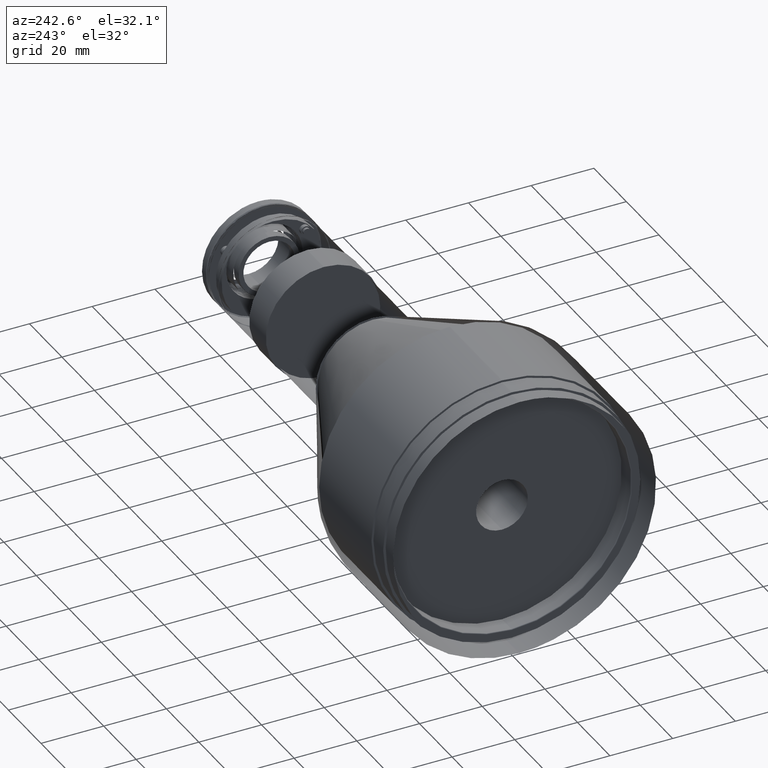
[diagram: clean part render]
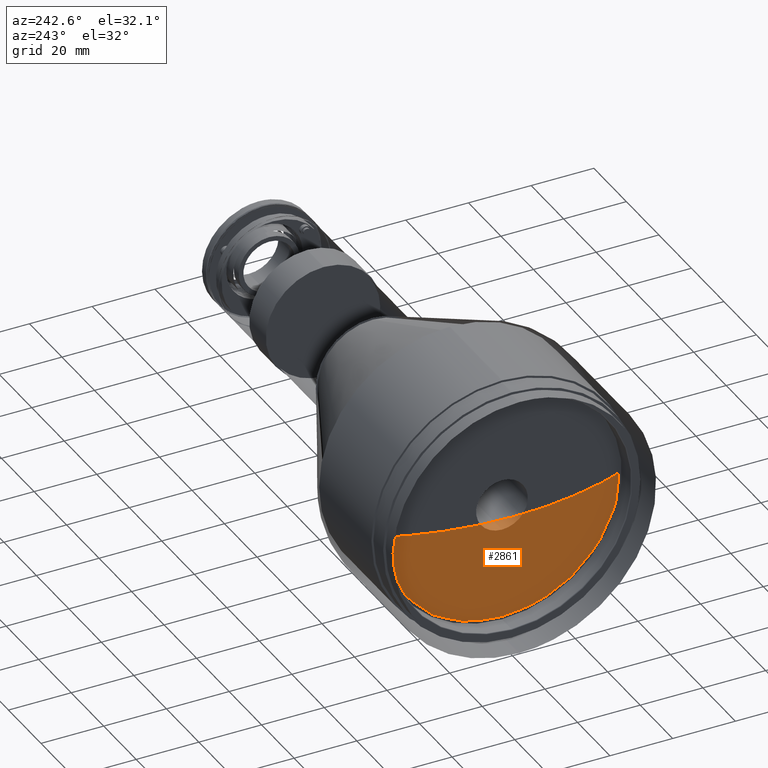
[diagram: same view with one face highlighted and labeled with its STEP entity id]
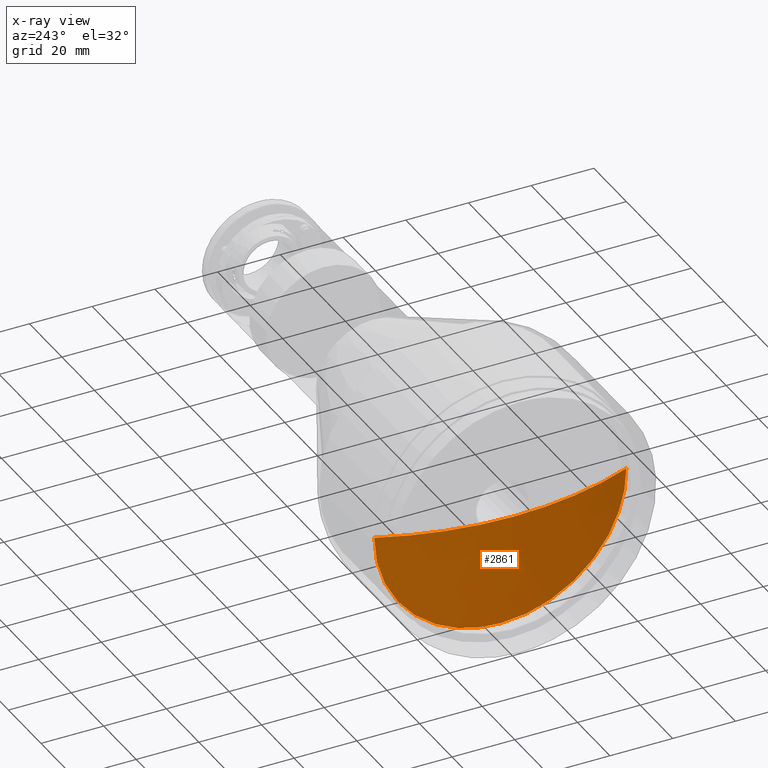
[diagram: x-ray of the same camera — body ghosted, the highlighted face saturated]
A machine part, auxiliary view. The second image highlights one B-rep face of the part: STEP entity #2861.
The next image is the same camera in x-ray: the body ghosted, the highlighted face saturated — about 0% of this face is hidden behind the body in this view.
In plain terms, the highlighted spherical surface has radius 103.562 mm.
Its self-contained STEP definition (entity closure, byte-faithful):
#212 = CARTESIAN_POINT ( 'NONE',  ( -12.48774575317731994, -26.56523537351348807, -194.3975650251960872 ) ) ;
#283 = EDGE_CURVE ( 'NONE', #1224, #2715, #9218, .T. ) ;
#321 = CARTESIAN_POINT ( 'NONE',  ( -12.48774575297434097, -5.262102636112507170, -204.0522824584492696 ) ) ;
#402 = DIRECTION ( 'NONE',  ( 2.054468784391190237E-12, 1.224646796003992963E-16, -1.000000000000000000 ) ) ;
#517 = CARTESIAN_POINT ( 'NONE',  ( -12.48774575284909893, -5.937449909053119909E-11, -204.3114151911725003 ) ) ;
#656 = CARTESIAN_POINT ( 'NONE',  ( -12.48774575282488719, 10.42315925403394594, -203.0256844683735267 ) ) ;
#708 = CARTESIAN_POINT ( 'NONE',  ( -12.48774575275445642, 17.81467849597928677, -200.2445002005909771 ) ) ;
#783 = SPHERICAL_SURFACE ( 'NONE', #9052, 103.5620100010689981 ) ;
#1027 = CARTESIAN_POINT ( 'NONE',  ( -12.48774575315784752, -24.52158963406693104, -196.0747417395316177 ) ) ;
#1224 = VERTEX_POINT ( 'NONE', #517 ) ;
#1418 = CARTESIAN_POINT ( 'NONE',  ( -12.48774575284909893, -5.937449909053119909E-11, -204.3114151911725003 ) ) ;
#1901 = CARTESIAN_POINT ( 'NONE',  ( -12.48774575330476466, -39.94086726742229843, -169.3735178270368920 ) ) ;
#2015 = CARTESIAN_POINT ( 'NONE',  ( -12.48774575302351586, -10.42315925417181965, -203.0256844683687518 ) ) ;
#2111 = CARTESIAN_POINT ( 'NONE',  ( -12.48774575294927125, -2.631083847452384550, -204.3114151912040199 ) ) ;
#2228 = CARTESIAN_POINT ( 'NONE',  ( -12.48774575257991515, 36.13308500942977730, -181.9260936871404226 ) ) ;
#2715 = VERTEX_POINT ( 'NONE', #9298 ) ;
#2782 = CARTESIAN_POINT ( 'NONE',  ( -12.48774575267330178, 40.20000000004797158, -164.1114151910423971 ) ) ;
#2820 = AXIS2_PLACEMENT_3D ( 'NONE', #8742, #402, #10209 ) ;
#2821 = CARTESIAN_POINT ( 'NONE',  ( -12.48774575309393953, -17.81467849612923615, -200.2445002005760273 ) ) ;
#2861 = ADVANCED_FACE ( 'NONE', ( #6548 ), #783, .F. ) ;
#2984 = DIRECTION ( 'NONE',  ( -2.054468784391190237E-12, 3.143360148565440255E-25, 1.000000000000000000 ) ) ;
#3139 = CARTESIAN_POINT ( 'NONE',  ( -12.48774575330723380, -40.20000000016919728, -166.7424990383760814 ) ) ;
#3155 = CARTESIAN_POINT ( 'NONE',  ( -12.48774575269055553, 24.52158963390868252, -196.0747417395615173 ) ) ;
#3515 = AXIS2_PLACEMENT_3D ( 'NONE', #4660, #2984, #4011 ) ;
#3521 = CARTESIAN_POINT ( 'NONE',  ( -12.48774575325660940, -34.88683028093409888, -184.2576722919546910 ) ) ;
#3945 = ORIENTED_EDGE ( 'NONE', *, *, #283, .F. ) ;
#4011 = DIRECTION ( 'NONE',  ( 1.000000000000000000, 0.000000000000000000, 2.054558835495901942E-12 ) ) ;
#4093 = DIRECTION ( 'NONE',  ( 1.530332761633393894E-13, 1.000000000000000000, 0.000000000000000000 ) ) ;
#4339 = CARTESIAN_POINT ( 'NONE',  ( -12.48774575321277247, -30.28614983423207363, -190.6766505644665131 ) ) ;
#4503 = VERTEX_POINT ( 'NONE', #2782 ) ;
#4660 = CARTESIAN_POINT ( 'NONE',  ( 82.95359704713609972, -1.584066211535169798E-11, -164.1114151907869712 ) ) ;
#4883 = CARTESIAN_POINT ( 'NONE',  ( -12.48774575267108133, 26.56523537335350227, -194.3975650252317564 ) ) ;
#4979 = EDGE_CURVE ( 'NONE', #2715, #8475, #6986, .T. ) ;
#5419 = CARTESIAN_POINT ( 'NONE',  ( -12.48774575311615642, -20.14625710101532974, -198.9982454719169880 ) ) ;
#5600 = CARTESIAN_POINT ( 'NONE',  ( -12.48774575289913180, 2.631083847328836711, -204.3114151912039915 ) ) ;
#5656 = CARTESIAN_POINT ( 'NONE',  ( -12.48774575273224308, 20.14625710086209764, -198.9982454719365705 ) ) ;
#5727 = CARTESIAN_POINT ( 'NONE',  ( -20.60841295393289840, 1.268268839586037163E-14, -164.1114151909997645 ) ) ;
#6029 = CARTESIAN_POINT ( 'NONE',  ( -12.48774575328767078, -38.14682940469685946, -177.0644846572054405 ) ) ;
#6344 = EDGE_CURVE ( 'NONE', #4503, #8475, #7002, .T. ) ;
#6526 = CARTESIAN_POINT ( 'NONE',  ( -12.48774575254116925, 40.20000000004261409, -166.7424990384899672 ) ) ;
#6548 = FACE_OUTER_BOUND ( 'NONE', #8706, .T. ) ;
#6838 = CARTESIAN_POINT ( 'NONE',  ( -12.48774575326848257, -36.13308500958618907, -181.9260936870649630 ) ) ;
#6986 = CIRCLE ( 'NONE', #2820, 103.5620100010689981 ) ;
#7002 = CIRCLE ( 'NONE', #3515, 103.5620100010689981 ) ;
#7375 = CARTESIAN_POINT ( 'NONE',  ( -12.48774575255341723, 38.91426927721216344, -174.5345744451950623 ) ) ;
#7639 = CARTESIAN_POINT ( 'NONE',  ( -12.48774575322875435, -31.96332654856161426, -188.6330048250150071 ) ) ;
#7748 = CARTESIAN_POINT ( 'NONE',  ( -12.48774575284909893, -5.937449909053119909E-11, -204.3114151911725003 ) ) ;
#7975 = CARTESIAN_POINT ( 'NONE',  ( -12.48774575280078913, 12.95306946613340848, -202.2582445957087600 ) ) ;
#8084 = CARTESIAN_POINT ( 'NONE',  ( -12.48774575254363839, 39.94086726728890113, -169.3735178271450934 ) ) ;
#8375 = DIRECTION ( 'NONE',  ( 2.054468784391190237E-12, -3.144020888506971909E-25, -1.000000000000000000 ) ) ;
#8475 = VERTEX_POINT ( 'NONE', #5727 ) ;
#8706 = EDGE_LOOP ( 'NONE', ( #10035, #3945, #10267, #9337 ) ) ;
#8742 = CARTESIAN_POINT ( 'NONE',  ( 82.95359704713609972, -1.584066211535169798E-11, -164.1114151907869712 ) ) ;
#8835 = CARTESIAN_POINT ( 'NONE',  ( -12.48774575256072872, 38.14682940454742521, -177.0644846572944573 ) ) ;
#8942 = CARTESIAN_POINT ( 'NONE',  ( -12.48774575287406208, 5.262102635983992194, -204.0522824584502644 ) ) ;
#9052 = AXIS2_PLACEMENT_3D ( 'NONE', #9939, #8375, #4093 ) ;
#9218 = B_SPLINE_CURVE_WITH_KNOTS ( 'NONE', 3,
 ( #7748, #2111, #321, #2015, #10233, #2821, #5419, #1027, #212, #4339, #7639, #3521, #6838, #6029, #9318, #1901, #3139, #9631 ),
 .UNSPECIFIED., .F., .F.,
 ( 4, 2, 2, 2, 2, 2, 2, 2, 4 ),
 ( 0.000000000000000000, 0.1250000000000000000, 0.2499999999999999722, 0.3750000000000000000, 0.5000000000000000000, 0.6250000000000000000, 0.7500000000000000000, 0.8750000000000000000, 1.000000000000000000 ),
 .UNSPECIFIED. ) ;
#9298 = CARTESIAN_POINT ( 'NONE',  ( -12.48774575300489964, -40.20000000003405205, -164.1114151909829957 ) ) ;
#9318 = CARTESIAN_POINT ( 'NONE',  ( -12.48774575329498226, -38.91426927735696495, -174.5345744450992811 ) ) ;
#9337 = ORIENTED_EDGE ( 'NONE', *, *, #6344, .T. ) ;
#9631 = CARTESIAN_POINT ( 'NONE',  ( -12.48774575300489964, -40.20000000003405205, -164.1114151909829957 ) ) ;
#9755 = CARTESIAN_POINT ( 'NONE',  ( -12.48774575267330178, 40.20000000004797158, -164.1114151910423971 ) ) ;
#9939 = CARTESIAN_POINT ( 'NONE',  ( 82.95359704713609972, -1.584066211535169798E-11, -164.1114151907869712 ) ) ;
#9972 = B_SPLINE_CURVE_WITH_KNOTS ( 'NONE', 3,
 ( #9755, #6526, #8084, #7375, #8835, #2228, #10511, #10568, #10461, #4883, #3155, #5656, #708, #7975, #656, #8942, #5600, #1418 ),
 .UNSPECIFIED., .F., .F.,
 ( 4, 2, 2, 2, 2, 2, 2, 2, 4 ),
 ( 0.5000000000000000000, 0.5625000000000000000, 0.6250000000000001110, 0.6875000000000002220, 0.7500000000000002220, 0.8125000000000002220, 0.8750000000000002220, 0.9375000000000002220, 1.000000000000000000 ),
 .UNSPECIFIED. ) ;
#10035 = ORIENTED_EDGE ( 'NONE', *, *, #4979, .F. ) ;
#10067 = EDGE_CURVE ( 'NONE', #4503, #1224, #9972, .T. ) ;
#10209 = DIRECTION ( 'NONE',  ( -1.000000000000000000, 0.000000000000000000, -2.054558835495901942E-12 ) ) ;
#10233 = CARTESIAN_POINT ( 'NONE',  ( -12.48774575304762635, -12.95306946627567335, -202.2582445957012283 ) ) ;
#10267 = ORIENTED_EDGE ( 'NONE', *, *, #10067, .F. ) ;
#10461 = CARTESIAN_POINT ( 'NONE',  ( -12.48774575263562703, 30.28614983407055661, -190.6766505645146879 ) ) ;
#10511 = CARTESIAN_POINT ( 'NONE',  ( -12.48774575259178832, 34.88683028077532100, -184.2576722920231873 ) ) ;
#10568 = CARTESIAN_POINT ( 'NONE',  ( -12.48774575261964692, 31.96332654840026422, -188.6330048250697757 ) ) ;